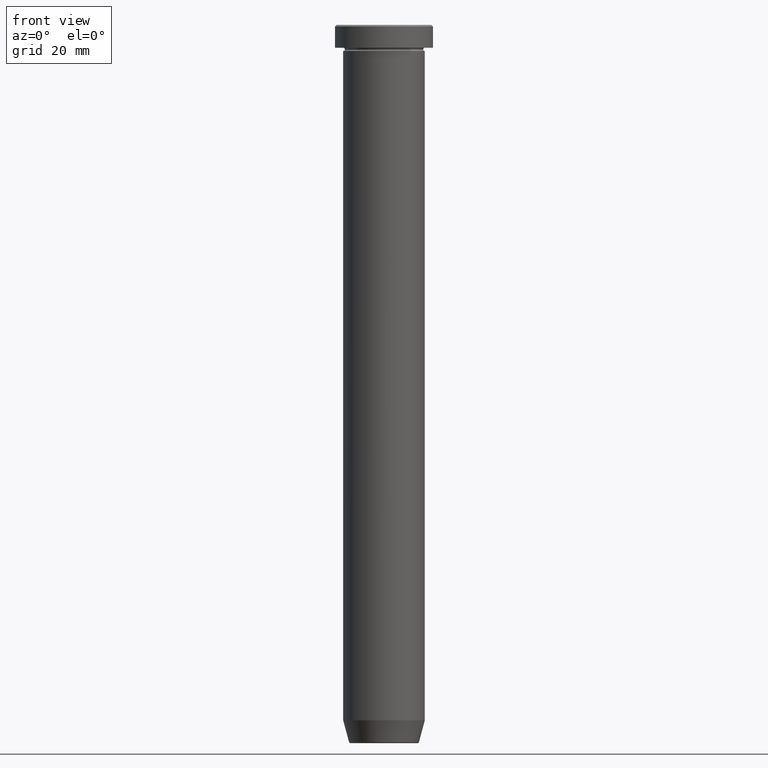
[diagram: clean part render]
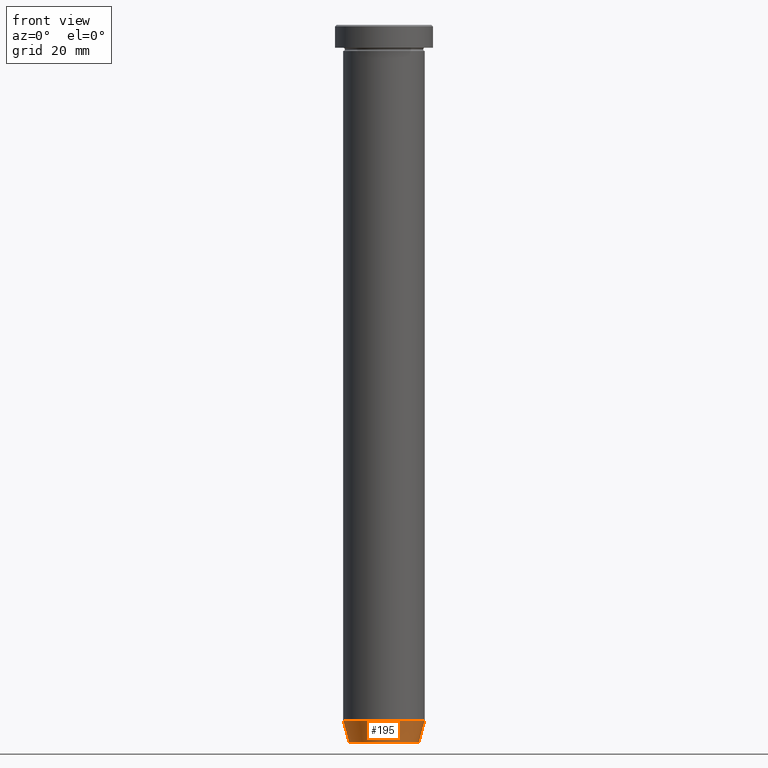
[diagram: same view with one face highlighted and labeled with its STEP entity id]
A machine part, front view. The second image highlights one B-rep face of the part: STEP entity #195.
In plain terms, the highlighted conical surface has half-angle 15 deg.
Its self-contained STEP definition (entity closure, byte-faithful):
#53 = CIRCLE ( 'NONE', #187, 10.72365507213718949 ) ;
#56 = LINE ( 'NONE', #392, #501 ) ;
#62 = FACE_OUTER_BOUND ( 'NONE', #231, .T. ) ;
#83 = EDGE_CURVE ( 'NONE', #226, #505, #461, .T. ) ;
#102 = VECTOR ( 'NONE', #569, 1000.000000000000000 ) ;
#109 = CARTESIAN_POINT ( 'NONE',  ( 0.000000000000000000, 0.000000000000000000, -220.0000000000000284 ) ) ;
#129 = CARTESIAN_POINT ( 'NONE',  ( 10.72365507213718949, 0.000000000000000000, -219.6294095225512706 ) ) ;
#131 = ORIENTED_EDGE ( 'NONE', *, *, #140, .F. ) ;
#140 = EDGE_CURVE ( 'NONE', #163, #226, #56, .T. ) ;
#141 = CARTESIAN_POINT ( 'NONE',  ( 0.000000000000000000, 0.000000000000000000, -213.0000000000000284 ) ) ;
#163 = VERTEX_POINT ( 'NONE', #213 ) ;
#186 = EDGE_CURVE ( 'NONE', #571, #505, #471, .T. ) ;
#187 = AXIS2_PLACEMENT_3D ( 'NONE', #205, #401, #355 ) ;
#195 = ADVANCED_FACE ( 'NONE', ( #62 ), #277, .T. ) ;
#198 = DIRECTION ( 'NONE',  ( -0.2588190451025209060, 3.169619151431766790E-17, 0.9659258262890682012 ) ) ;
#205 = CARTESIAN_POINT ( 'NONE',  ( 0.000000000000000000, 0.000000000000000000, -219.6294095225512706 ) ) ;
#213 = CARTESIAN_POINT ( 'NONE',  ( -10.72365507213718949, 1.422038742429750318E-15, -219.6294095225512706 ) ) ;
#226 = VERTEX_POINT ( 'NONE', #293 ) ;
#231 = EDGE_LOOP ( 'NONE', ( #131, #547, #592, #577 ) ) ;
#242 = DIRECTION ( 'NONE',  ( 1.000000000000000000, 0.000000000000000000, 0.000000000000000000 ) ) ;
#277 = CONICAL_SURFACE ( 'NONE', #465, 10.62435565298213902, 0.2617993877991495744 ) ;
#286 = EDGE_CURVE ( 'NONE', #163, #571, #53, .T. ) ;
#293 = CARTESIAN_POINT ( 'NONE',  ( -12.50000000000000000, 1.530808498934191521E-15, -213.0000000000000284 ) ) ;
#294 = CARTESIAN_POINT ( 'NONE',  ( 12.50000000000000000, 0.000000000000000000, -213.0000000000000284 ) ) ;
#298 = CARTESIAN_POINT ( 'NONE',  ( 10.62435565298213902, 0.000000000000000000, -220.0000000000000284 ) ) ;
#323 = DIRECTION ( 'NONE',  ( 1.000000000000000000, 0.000000000000000000, 0.000000000000000000 ) ) ;
#355 = DIRECTION ( 'NONE',  ( -1.000000000000000000, 0.000000000000000000, 0.000000000000000000 ) ) ;
#392 = CARTESIAN_POINT ( 'NONE',  ( -10.62435565298213902, 1.301108314342766318E-15, -220.0000000000000284 ) ) ;
#401 = DIRECTION ( 'NONE',  ( -0.000000000000000000, -0.000000000000000000, 1.000000000000000000 ) ) ;
#419 = AXIS2_PLACEMENT_3D ( 'NONE', #141, #551, #323 ) ;
#443 = DIRECTION ( 'NONE',  ( -0.000000000000000000, -0.000000000000000000, 1.000000000000000000 ) ) ;
#461 = CIRCLE ( 'NONE', #419, 12.50000000000000000 ) ;
#465 = AXIS2_PLACEMENT_3D ( 'NONE', #109, #443, #242 ) ;
#471 = LINE ( 'NONE', #298, #102 ) ;
#501 = VECTOR ( 'NONE', #198, 1000.000000000000000 ) ;
#505 = VERTEX_POINT ( 'NONE', #294 ) ;
#547 = ORIENTED_EDGE ( 'NONE', *, *, #286, .T. ) ;
#551 = DIRECTION ( 'NONE',  ( -0.000000000000000000, -0.000000000000000000, 1.000000000000000000 ) ) ;
#569 = DIRECTION ( 'NONE',  ( 0.2588190451025209060, 0.000000000000000000, 0.9659258262890682012 ) ) ;
#571 = VERTEX_POINT ( 'NONE', #129 ) ;
#577 = ORIENTED_EDGE ( 'NONE', *, *, #83, .F. ) ;
#592 = ORIENTED_EDGE ( 'NONE', *, *, #186, .T. ) ;